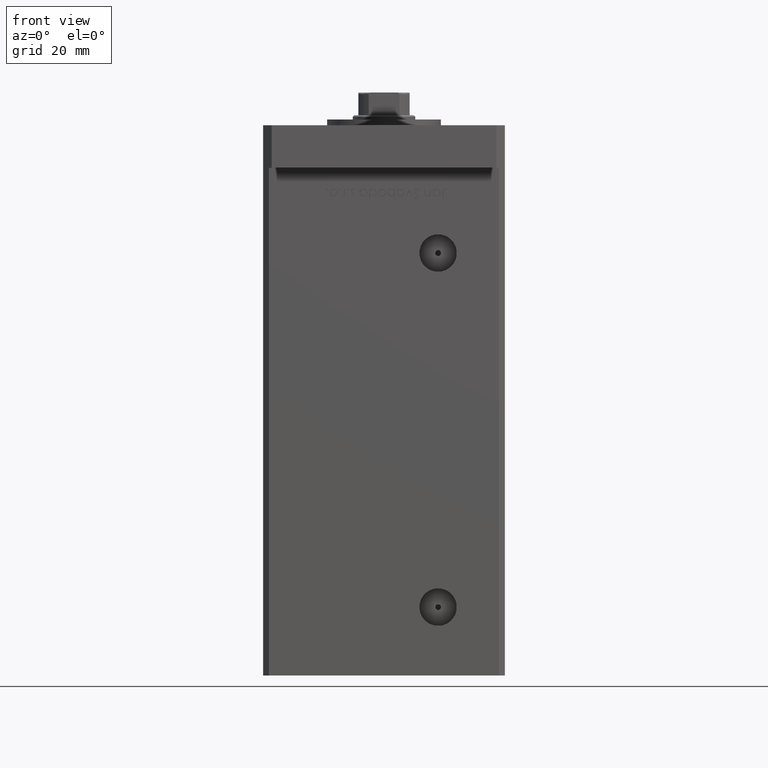
[diagram: clean part render]
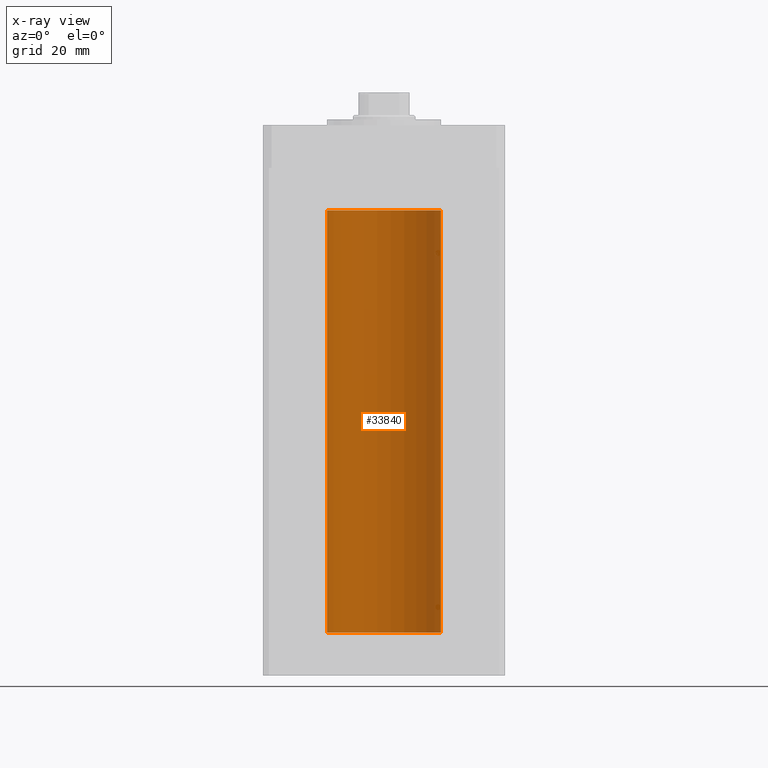
[diagram: x-ray — body ghosted, one internal face saturated and labeled with its STEP entity id]
A machine part, front view, then the same camera in x-ray: the body is ghosted and one INTERNAL B-rep face — a face not visible from any outside direction — is saturated and labeled: STEP entity #33840.
In plain terms, the highlighted cylindrical surface (partial cylindrical patch) has radius 20 mm, axis along (-0, -0, -1).
Its self-contained STEP definition (entity closure, byte-faithful):
#91 = CARTESIAN_POINT ( 'NONE',  ( 20.00000000000000000, 2.449293598294706513E-15, 148.5000000000000000 ) ) ;
#1574 = EDGE_CURVE ( 'NONE', #47196, #1897, #8820, .T. ) ;
#1897 = VERTEX_POINT ( 'NONE', #12555 ) ;
#3435 = CYLINDRICAL_SURFACE ( 'NONE', #14449, 20.00000000000000000 ) ;
#4238 = CIRCLE ( 'NONE', #15463, 20.00000000000000000 ) ;
#8820 = LINE ( 'NONE', #26439, #52653 ) ;
#9539 = DIRECTION ( 'NONE',  ( 1.000000000000000000, 0.000000000000000000, 0.000000000000000000 ) ) ;
#9640 = VERTEX_POINT ( 'NONE', #35962 ) ;
#9721 = EDGE_CURVE ( 'NONE', #9640, #1897, #20775, .T. ) ;
#11983 = CARTESIAN_POINT ( 'NONE',  ( -20.00000000000000000, 0.000000000000000000, 148.5000000000000000 ) ) ;
#12555 = CARTESIAN_POINT ( 'NONE',  ( -20.00000000000000000, 0.000000000000000000, 0.000000000000000000 ) ) ;
#14141 = VECTOR ( 'NONE', #16374, 1000.000000000000000 ) ;
#14449 = AXIS2_PLACEMENT_3D ( 'NONE', #44385, #52010, #48725 ) ;
#15463 = AXIS2_PLACEMENT_3D ( 'NONE', #30153, #42338, #9539 ) ;
#16374 = DIRECTION ( 'NONE',  ( -0.000000000000000000, -0.000000000000000000, -1.000000000000000000 ) ) ;
#18126 = ORIENTED_EDGE ( 'NONE', *, *, #42958, .T. ) ;
#19715 = EDGE_LOOP ( 'NONE', ( #28518, #18126, #36741, #31439 ) ) ;
#20720 = LINE ( 'NONE', #91, #14141 ) ;
#20775 = CIRCLE ( 'NONE', #25104, 20.00000000000000000 ) ;
#23920 = EDGE_CURVE ( 'NONE', #52942, #9640, #20720, .T. ) ;
#25104 = AXIS2_PLACEMENT_3D ( 'NONE', #32958, #28078, #49491 ) ;
#26439 = CARTESIAN_POINT ( 'NONE',  ( -20.00000000000000000, 0.000000000000000000, 148.5000000000000000 ) ) ;
#28078 = DIRECTION ( 'NONE',  ( -0.000000000000000000, 0.000000000000000000, 1.000000000000000000 ) ) ;
#28518 = ORIENTED_EDGE ( 'NONE', *, *, #23920, .F. ) ;
#30153 = CARTESIAN_POINT ( 'NONE',  ( 0.000000000000000000, 0.000000000000000000, 148.5000000000000000 ) ) ;
#31439 = ORIENTED_EDGE ( 'NONE', *, *, #9721, .F. ) ;
#32196 = FACE_OUTER_BOUND ( 'NONE', #19715, .T. ) ;
#32958 = CARTESIAN_POINT ( 'NONE',  ( 0.000000000000000000, 0.000000000000000000, 0.000000000000000000 ) ) ;
#33840 = ADVANCED_FACE ( 'NONE', ( #32196 ), #3435, .F. ) ;
#35962 = CARTESIAN_POINT ( 'NONE',  ( 20.00000000000000000, 2.449293598294706513E-15, 0.000000000000000000 ) ) ;
#36741 = ORIENTED_EDGE ( 'NONE', *, *, #1574, .T. ) ;
#42338 = DIRECTION ( 'NONE',  ( -0.000000000000000000, 0.000000000000000000, 1.000000000000000000 ) ) ;
#42958 = EDGE_CURVE ( 'NONE', #52942, #47196, #4238, .T. ) ;
#44385 = CARTESIAN_POINT ( 'NONE',  ( 0.000000000000000000, 0.000000000000000000, 148.5000000000000000 ) ) ;
#46331 = CARTESIAN_POINT ( 'NONE',  ( 20.00000000000000000, 2.449293598294706513E-15, 148.5000000000000000 ) ) ;
#47196 = VERTEX_POINT ( 'NONE', #11983 ) ;
#48725 = DIRECTION ( 'NONE',  ( -1.000000000000000000, 0.000000000000000000, 0.000000000000000000 ) ) ;
#49491 = DIRECTION ( 'NONE',  ( 1.000000000000000000, 0.000000000000000000, 0.000000000000000000 ) ) ;
#50583 = DIRECTION ( 'NONE',  ( -0.000000000000000000, -0.000000000000000000, -1.000000000000000000 ) ) ;
#52010 = DIRECTION ( 'NONE',  ( -0.000000000000000000, -0.000000000000000000, -1.000000000000000000 ) ) ;
#52653 = VECTOR ( 'NONE', #50583, 1000.000000000000000 ) ;
#52942 = VERTEX_POINT ( 'NONE', #46331 ) ;